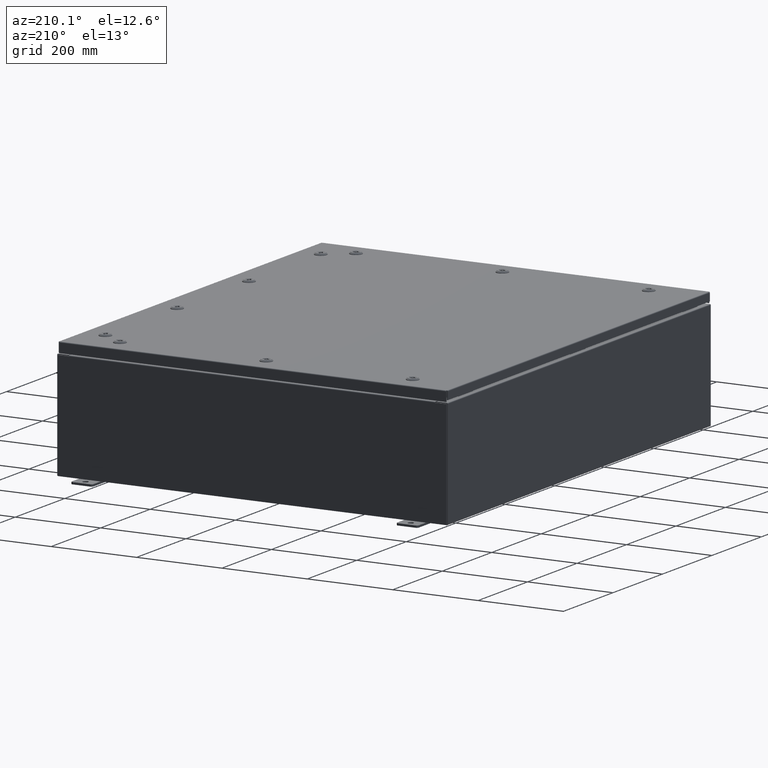
[diagram: clean part render]
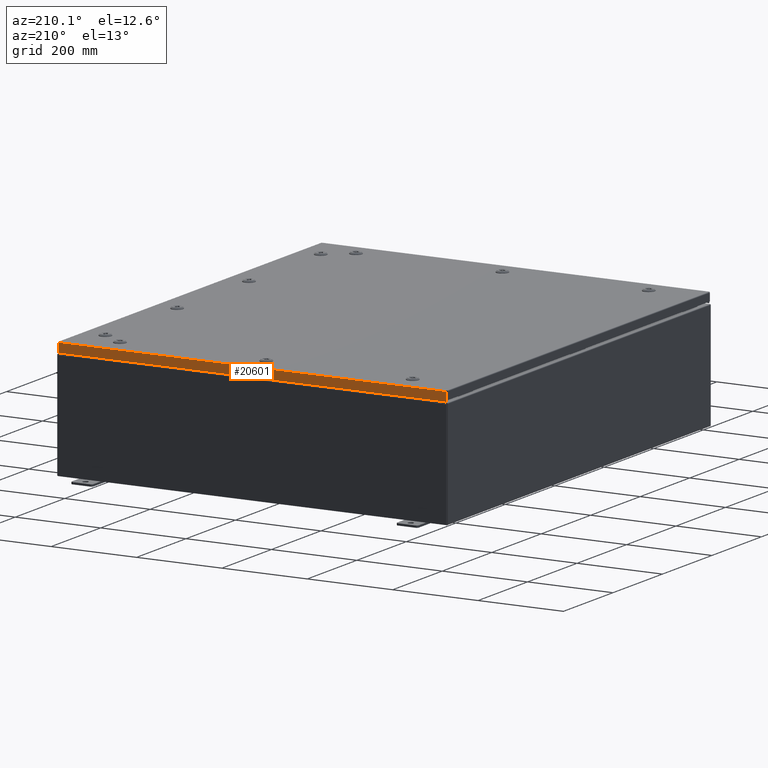
[diagram: same view with one face highlighted and labeled with its STEP entity id]
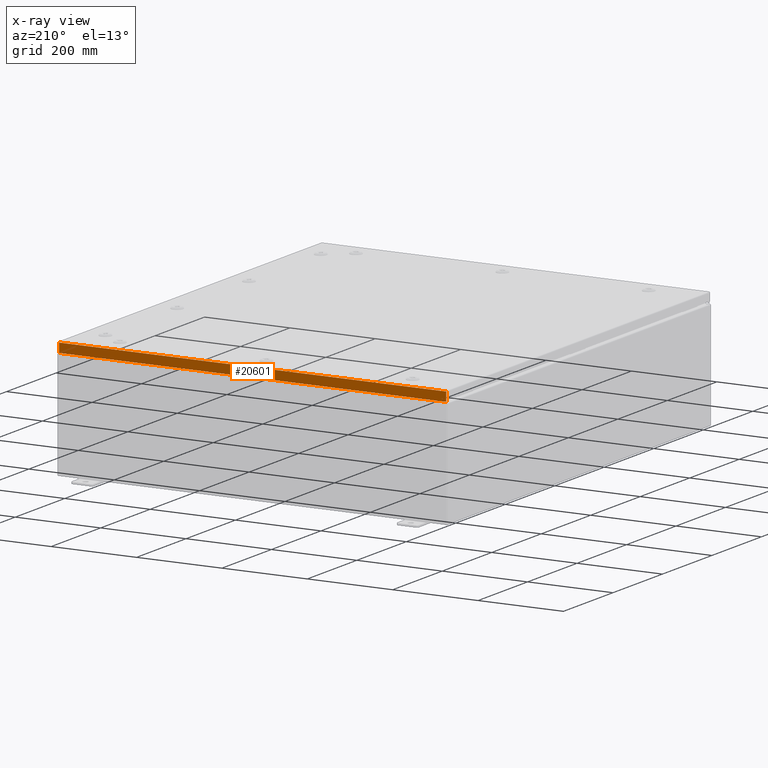
[diagram: x-ray of the same camera — body ghosted, the highlighted face saturated]
A machine part, auxiliary view. The second image highlights one B-rep face of the part: STEP entity #20601.
The next image is the same camera in x-ray: the body ghosted, the highlighted face saturated — about 0% of this face is hidden behind the body in this view.
In plain terms, the highlighted planar face has unit normal (0, -1, -0).
Its self-contained STEP definition (entity closure, byte-faithful):
#25 = VECTOR ( 'NONE', #3372, 39.37007874015748100 ) ;
#123 = CARTESIAN_POINT ( 'NONE',  ( -17.84865786437627100, 20.93750000000000000, -0.08769999999999550400 ) ) ;
#369 = VECTOR ( 'NONE', #17591, 39.37007874015748100 ) ;
#1822 = LINE ( 'NONE', #34814, #14260 ) ;
#1832 = ORIENTED_EDGE ( 'NONE', *, *, #4623, .F. ) ;
#2299 = VECTOR ( 'NONE', #64950, 39.37007874015748100 ) ;
#2795 = CARTESIAN_POINT ( 'NONE',  ( -1.292037578924910300E-029, 20.93750000000000000, 1.063058979987141900E-013 ) ) ;
#3372 = DIRECTION ( 'NONE',  ( -0.0000000000000000000, 5.064839849203706200E-015, -1.000000000000000000 ) ) ;
#3973 = LINE ( 'NONE', #38265, #2299 ) ;
#4623 = EDGE_CURVE ( 'NONE', #63081, #66633, #1822, .T. ) ;
#5660 = EDGE_CURVE ( 'NONE', #18154, #63081, #10849, .T. ) ;
#10849 = LINE ( 'NONE', #29811, #25 ) ;
#10853 = CARTESIAN_POINT ( 'NONE',  ( 17.84865786437626800, 20.93750000000000700, -0.9376999999999997600 ) ) ;
#12381 = EDGE_CURVE ( 'NONE', #51949, #18154, #30322, .T. ) ;
#13464 = PLANE ( 'NONE',  #59268 ) ;
#14260 = VECTOR ( 'NONE', #66607, 39.37007874015748100 ) ;
#17591 = DIRECTION ( 'NONE',  ( -1.000000000000000000, -6.170925750089125200E-031, -3.189293793798670500E-045 ) ) ;
#18154 = VERTEX_POINT ( 'NONE', #123 ) ;
#18779 = DIRECTION ( 'NONE',  ( 6.170925750089124300E-031, -1.000000000000000000, -5.064839849203706200E-015 ) ) ;
#20601 = ADVANCED_FACE ( 'NONE', ( #48143 ), #13464, .F. ) ;
#20794 = ORIENTED_EDGE ( 'NONE', *, *, #12381, .F. ) ;
#22920 = CARTESIAN_POINT ( 'NONE',  ( -17.93750000000000000, 20.93750000000000000, -0.08769999999999550400 ) ) ;
#27837 = ORIENTED_EDGE ( 'NONE', *, *, #65164, .T. ) ;
#29811 = CARTESIAN_POINT ( 'NONE',  ( -17.84865786437626800, 20.93750000000000000, -0.07469999999999962800 ) ) ;
#30322 = LINE ( 'NONE', #22920, #369 ) ;
#34814 = CARTESIAN_POINT ( 'NONE',  ( -17.93750000000000000, 20.93750000000000700, -0.9377000000000042000 ) ) ;
#38265 = CARTESIAN_POINT ( 'NONE',  ( 17.84865786437626400, 20.93750000000000000, 1.063058979987141900E-013 ) ) ;
#39888 = CARTESIAN_POINT ( 'NONE',  ( -17.84865786437626800, 20.93750000000000700, -0.9377000000000042000 ) ) ;
#48143 = FACE_OUTER_BOUND ( 'NONE', #53777, .T. ) ;
#51949 = VERTEX_POINT ( 'NONE', #66080 ) ;
#52152 = ORIENTED_EDGE ( 'NONE', *, *, #5660, .F. ) ;
#53777 = EDGE_LOOP ( 'NONE', ( #20794, #27837, #1832, #52152 ) ) ;
#55888 = DIRECTION ( 'NONE',  ( 0.0000000000000000000, 5.064839849203706200E-015, -1.000000000000000000 ) ) ;
#59268 = AXIS2_PLACEMENT_3D ( 'NONE', #2795, #18779, #55888 ) ;
#63081 = VERTEX_POINT ( 'NONE', #39888 ) ;
#64950 = DIRECTION ( 'NONE',  ( 0.0000000000000000000, 5.064839849203706200E-015, -1.000000000000000000 ) ) ;
#65164 = EDGE_CURVE ( 'NONE', #51949, #66633, #3973, .T. ) ;
#66080 = CARTESIAN_POINT ( 'NONE',  ( 17.84865786437626800, 20.93750000000000000, -0.08769999999999550400 ) ) ;
#66607 = DIRECTION ( 'NONE',  ( 1.000000000000000000, 1.751623080406021300E-046, 1.218385167906012900E-016 ) ) ;
#66633 = VERTEX_POINT ( 'NONE', #10853 ) ;